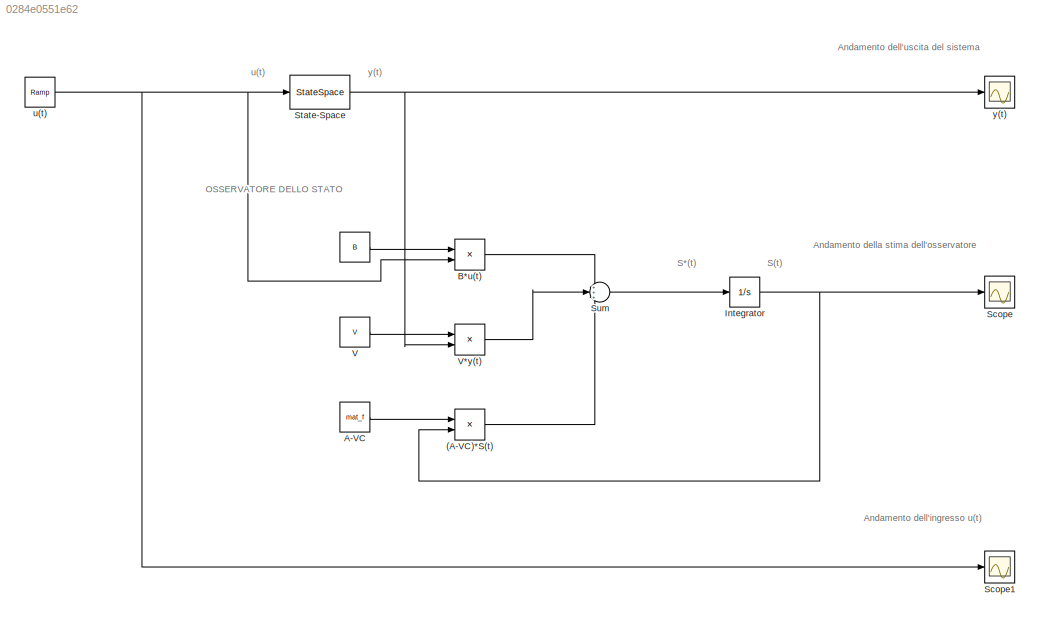
MODEL slx_0284e0551e62
KIND model
CONFIG AbsTol = auto
CONFIG EnableMultiTasking = off
CONFIG FixedStep = auto
CONFIG MaxStep = auto
CONFIG MinStep = auto
CONFIG RelTol = 1e-3
CONFIG SampleTimeConstraint = Unconstrained
CONFIG Solver = VariableStepAuto
CONFIG SolverName = VariableStepAuto
CONFIG StartTime = 0.0
CONFIG StopTime = 50
BLOCK [Constant]  
  SampleTime = 0
  Value = B
BLOCK [Product] (A-VC)*S(t)
  InputSameDT = off
  Multiplication = Matrix(*)
  OutDataTypeStr = Inherit: Inherit via internal rule
  Ports = [2, 1]
  RndMeth = Floor
  SaturateOnIntegerOverflow = off
BLOCK [Constant] A-VC
  SampleTime = 0
  Value = mat_f
  VectorParams1D = off
BLOCK [Product] B*u(t)
  InputSameDT = off
  Multiplication = Matrix(*)
  OutDataTypeStr = Inherit: Inherit via internal rule
  Ports = [2, 1]
  RndMeth = Floor
  SaturateOnIntegerOverflow = off
BLOCK [Integrator] Integrator
  Ports = [1, 1]
BLOCK [Scope] Scope
  Floating = off
  NumInputPorts = 1
  Ports = [1]
  ScopeSpecificationString = Simulink.scopes.TimeScopeBlockCfg('CurrentConfiguration', extmgr.ConfigurationSet(extmgr.Configuration('Core','General UI',true),extmgr.Configuration('Core','Source UI',true),extmgr.Configuration('Sources','WiredSimulink',true,'DataLoggingVariableName','ScopeData1'),extmgr.Configuration('Visuals','Time Domain',true,'SerializedDisplays',{struct('MinYLimReal','-2351.13144','MaxYLimReal','10677.40672...<+1512ch>
BLOCK [Scope] Scope1
  Floating = off
  NumInputPorts = 1
  Ports = [1]
  ScopeSpecificationString = Simulink.scopes.TimeScopeBlockCfg('CurrentConfiguration', extmgr.ConfigurationSet(extmgr.Configuration('Core','General UI',true),extmgr.Configuration('Core','Source UI',true),extmgr.Configuration('Sources','WiredSimulink',true,'DataLoggingVariableName','ScopeData1'),extmgr.Configuration('Visuals','Time Domain',true,'SerializedDisplays',{struct('MinYLimReal','-30.625','MaxYLimReal','275.625','YLabe...<+1387ch>
BLOCK [StateSpace] State-Space
  A = [0 0 1 0;0 0 0 1;-k/m1 k/m1 -c/m1 c/m1;k/m2 -k/m2 c/m2 -c/m2]
  B = [0;0;1/m1;0]
  C = [1 0 0 0]
  D = 0
  InitialCondition = x0
  Ports = [1, 1]
BLOCK [Sum] Sum
  IconShape = round
  InputSameDT = off
  Inputs = +++
  OutDataTypeStr = Inherit: Inherit via internal rule
  Ports = [3, 1]
  SaturateOnIntegerOverflow = off
BLOCK [Constant] V
  SampleTime = 0
  Value = V
  VectorParams1D = off
BLOCK [Product] V*y(t)
  InputSameDT = off
  Multiplication = Matrix(*)
  OutDataTypeStr = Inherit: Inherit via internal rule
  Ports = [2, 1]
  RndMeth = Floor
  SaturateOnIntegerOverflow = off
BLOCK [Reference] u(t)  REF=simulink/Sources/Ramp
  Ports = [0, 1]
  SourceBlock = simulink/Sources/Ramp
  SourceProductBaseCode = SL
  SourceProductName = Simulink
  SourceType = Ramp
BLOCK [Scope] y(t)
  Floating = off
  NumInputPorts = 1
  Ports = [1]
  ScopeSpecificationString = Simulink.scopes.TimeScopeBlockCfg('CurrentConfiguration', extmgr.ConfigurationSet(extmgr.Configuration('Core','General UI',true),extmgr.Configuration('Core','Source UI',true),extmgr.Configuration('Sources','WiredSimulink',true,'DataLoggingVariableName','ScopeData1'),extmgr.Configuration('Visuals','Time Domain',true,'SerializedDisplays',{struct('MinYLimReal','-6130.43427','MaxYLimReal','55173.90846...<+1466ch>
ANNOTATION (root): Andamento dell'ingresso u(t)
ANNOTATION (root): u(t)
ANNOTATION (root): Andamento dell'uscita del sistema
ANNOTATION (root): Andamento della stima dell'osservatore
ANNOTATION (root): S(t)
ANNOTATION (root): S*(t)
ANNOTATION (root): y(t)
ANNOTATION (root): OSSERVATORE DELLO STATO
LINE  :1 -> B*u(t):1
LINE (A-VC)*S(t):1 -> Sum:3
LINE A-VC:1 -> (A-VC)*S(t):1
LINE B*u(t):1 -> Sum:1
NET Integrator:1 -> (A-VC)*S(t):2, Scope:1
NET State-Space:1 -> V*y(t):2, y(t):1
LINE Sum:1 -> Integrator:1
LINE V*y(t):1 -> Sum:2
LINE V:1 -> V*y(t):1
NET u(t):1 -> B*u(t):2, Scope1:1, State-Space:1
note: NET lines group one-source signal fan-out (src -> all destinations, sorted); 1:1 wires keep LINE
